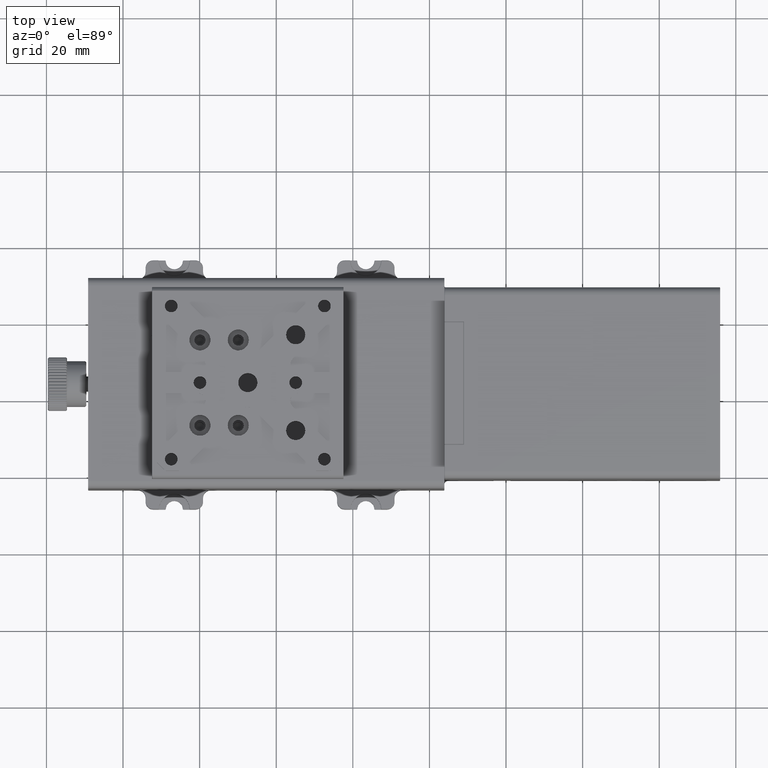
[diagram: clean part render]
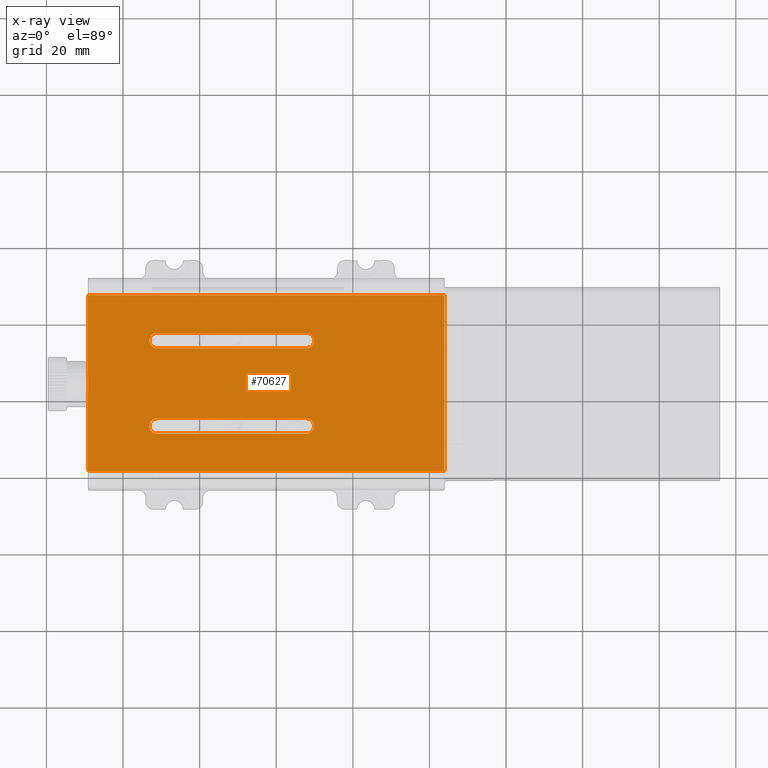
[diagram: x-ray — body ghosted, one internal face saturated and labeled with its STEP entity id]
A machine part, top view, then the same camera in x-ray: the body is ghosted and one INTERNAL B-rep face — a face not visible from any outside direction — is saturated and labeled: STEP entity #70627.
In plain terms, the highlighted planar face has unit normal (0, 0, 1).
Its self-contained STEP definition (entity closure, byte-faithful):
#964 = CIRCLE ( 'NONE', #76162, 2.000000000000001776 ) ;
#1258 = VERTEX_POINT ( 'NONE', #36710 ) ;
#2475 = CARTESIAN_POINT ( 'NONE',  ( -32.11011235955055554, 37.40842696629215425, 24.00000000000000000 ) ) ;
#2854 = CARTESIAN_POINT ( 'NONE',  ( -73.11011235955059817, 13.10842696629214110, 24.00000000000000000 ) ) ;
#3046 = LINE ( 'NONE', #27903, #21977 ) ;
#3352 = CARTESIAN_POINT ( 'NONE',  ( 3.889887640449449790, 47.25842696629209172, 24.00000000000000000 ) ) ;
#4679 = DIRECTION ( 'NONE',  ( -1.000000000000000000, 0.000000000000000000, 0.000000000000000000 ) ) ;
#5115 = VERTEX_POINT ( 'NONE', #73606 ) ;
#5117 = CARTESIAN_POINT ( 'NONE',  ( -73.11011235955059817, 33.40842696629215425, 24.00000000000000000 ) ) ;
#6685 = DIRECTION ( 'NONE',  ( 1.000000000000000000, 0.000000000000000000, 0.000000000000000000 ) ) ;
#7183 = DIRECTION ( 'NONE',  ( 1.000000000000000000, 0.000000000000000000, 0.000000000000000000 ) ) ;
#7926 = ORIENTED_EDGE ( 'NONE', *, *, #66463, .F. ) ;
#8285 = CIRCLE ( 'NONE', #80778, 2.000000000000001776 ) ;
#8307 = VECTOR ( 'NONE', #24137, 1000.000000000000000 ) ;
#8535 = CARTESIAN_POINT ( 'NONE',  ( -89.11011235955059817, 1.258426966292136129, 24.00000000000000000 ) ) ;
#8551 = EDGE_CURVE ( 'NONE', #77479, #56829, #8285, .T. ) ;
#9337 = DIRECTION ( 'NONE',  ( 1.000000000000000000, 0.000000000000000000, 0.000000000000000000 ) ) ;
#10386 = EDGE_CURVE ( 'NONE', #46378, #82194, #19054, .T. ) ;
#10423 = EDGE_CURVE ( 'NONE', #5115, #34966, #19476, .T. ) ;
#10672 = LINE ( 'NONE', #11065, #51928 ) ;
#10695 = ORIENTED_EDGE ( 'NONE', *, *, #47168, .T. ) ;
#11065 = CARTESIAN_POINT ( 'NONE',  ( -73.11011235955059817, 11.10842696629211979, 24.00000000000000000 ) ) ;
#12065 = AXIS2_PLACEMENT_3D ( 'NONE', #15161, #34079, #7183 ) ;
#12332 = CARTESIAN_POINT ( 'NONE',  ( 3.889887640449449790, 47.25842696629209172, 24.00000000000000000 ) ) ;
#12979 = CIRCLE ( 'NONE', #50602, 2.000000000000001776 ) ;
#13003 = DIRECTION ( 'NONE',  ( 0.000000000000000000, 0.000000000000000000, 1.000000000000000000 ) ) ;
#13099 = VECTOR ( 'NONE', #23998, 1000.000000000000000 ) ;
#13121 = VECTOR ( 'NONE', #4679, 1000.000000000000000 ) ;
#13423 = VERTEX_POINT ( 'NONE', #25596 ) ;
#15161 = CARTESIAN_POINT ( 'NONE',  ( -32.11011235955055554, 13.10842696629214110, 24.00000000000000000 ) ) ;
#15519 = ORIENTED_EDGE ( 'NONE', *, *, #64525, .F. ) ;
#15614 = DIRECTION ( 'NONE',  ( 0.000000000000000000, 0.000000000000000000, 1.000000000000000000 ) ) ;
#16401 = CARTESIAN_POINT ( 'NONE',  ( -32.11011235955055554, 11.10842696629211979, 24.00000000000000000 ) ) ;
#16787 = EDGE_LOOP ( 'NONE', ( #77813, #47249, #22033, #66593, #23701, #76634 ) ) ;
#17058 = CARTESIAN_POINT ( 'NONE',  ( -71.11011235955059817, 13.10842696629214110, 24.00000000000000000 ) ) ;
#17206 = CARTESIAN_POINT ( 'NONE',  ( -71.11011235955059817, 35.40842696629214714, 24.00000000000000000 ) ) ;
#18586 = VERTEX_POINT ( 'NONE', #81297 ) ;
#18638 = EDGE_CURVE ( 'NONE', #40859, #56829, #10672, .T. ) ;
#18679 = DIRECTION ( 'NONE',  ( 1.000000000000000000, 0.000000000000000000, 0.000000000000000000 ) ) ;
#19014 = LINE ( 'NONE', #32860, #34899 ) ;
#19054 = LINE ( 'NONE', #82121, #8307 ) ;
#19258 = ORIENTED_EDGE ( 'NONE', *, *, #10386, .F. ) ;
#19476 = LINE ( 'NONE', #75811, #71431 ) ;
#20287 = DIRECTION ( 'NONE',  ( 0.000000000000000000, 0.000000000000000000, 1.000000000000000000 ) ) ;
#21977 = VECTOR ( 'NONE', #65740, 1000.000000000000000 ) ;
#22033 = ORIENTED_EDGE ( 'NONE', *, *, #18638, .F. ) ;
#23701 = ORIENTED_EDGE ( 'NONE', *, *, #27343, .T. ) ;
#23998 = DIRECTION ( 'NONE',  ( 1.000000000000000000, 0.000000000000000000, 0.000000000000000000 ) ) ;
#24137 = DIRECTION ( 'NONE',  ( 0.000000000000000000, 1.000000000000000000, 0.000000000000000000 ) ) ;
#25388 = DIRECTION ( 'NONE',  ( 1.224646799147351975E-16, -1.000000000000000000, 0.000000000000000000 ) ) ;
#25397 = LINE ( 'NONE', #12332, #51437 ) ;
#25596 = CARTESIAN_POINT ( 'NONE',  ( -71.11011235955059817, 33.40842696629215425, 24.00000000000000000 ) ) ;
#26645 = CARTESIAN_POINT ( 'NONE',  ( -89.11011235955059817, 49.25842696629209883, 24.00000000000000000 ) ) ;
#27343 = EDGE_CURVE ( 'NONE', #18586, #42772, #44919, .T. ) ;
#27424 = CARTESIAN_POINT ( 'NONE',  ( -32.11011235955055554, 35.40842696629214714, 24.00000000000000000 ) ) ;
#27903 = CARTESIAN_POINT ( 'NONE',  ( -73.11011235955059817, 15.10842696629215176, 24.00000000000000000 ) ) ;
#30471 = ORIENTED_EDGE ( 'NONE', *, *, #55721, .T. ) ;
#32536 = CIRCLE ( 'NONE', #59366, 2.000000000000001776 ) ;
#32860 = CARTESIAN_POINT ( 'NONE',  ( -73.11011235955059817, 37.40842696629215425, 24.00000000000000000 ) ) ;
#32927 = FACE_OUTER_BOUND ( 'NONE', #66446, .T. ) ;
#33535 = CARTESIAN_POINT ( 'NONE',  ( 3.889887640449449790, 1.258426966292136129, 24.00000000000000000 ) ) ;
#33695 = DIRECTION ( 'NONE',  ( 1.000000000000000000, 0.000000000000000000, 0.000000000000000000 ) ) ;
#33802 = DIRECTION ( 'NONE',  ( 0.000000000000000000, 0.000000000000000000, 1.000000000000000000 ) ) ;
#34079 = DIRECTION ( 'NONE',  ( 0.000000000000000000, 0.000000000000000000, 1.000000000000000000 ) ) ;
#34217 = CARTESIAN_POINT ( 'NONE',  ( -71.11011235955059817, 13.10842696629214110, 24.00000000000000000 ) ) ;
#34899 = VECTOR ( 'NONE', #57273, 1000.000000000000000 ) ;
#34966 = VERTEX_POINT ( 'NONE', #8535 ) ;
#35700 = DIRECTION ( 'NONE',  ( 0.000000000000000000, 0.000000000000000000, 1.000000000000000000 ) ) ;
#36710 = CARTESIAN_POINT ( 'NONE',  ( -30.11011235955054843, 35.40842696629214714, 24.00000000000000000 ) ) ;
#37054 = CARTESIAN_POINT ( 'NONE',  ( -71.11011235955059817, 11.10842696629211979, 24.00000000000000000 ) ) ;
#39128 = EDGE_CURVE ( 'NONE', #64968, #1258, #42414, .T. ) ;
#40731 = DIRECTION ( 'NONE',  ( 0.000000000000000000, 0.000000000000000000, 1.000000000000000000 ) ) ;
#40859 = VERTEX_POINT ( 'NONE', #16401 ) ;
#41198 = DIRECTION ( 'NONE',  ( 1.000000000000000000, 0.000000000000000000, 0.000000000000000000 ) ) ;
#42414 = CIRCLE ( 'NONE', #47828, 2.000000000000001776 ) ;
#42772 = VERTEX_POINT ( 'NONE', #52224 ) ;
#44919 = CIRCLE ( 'NONE', #74492, 2.000000000000001776 ) ;
#45558 = FACE_BOUND ( 'NONE', #56708, .T. ) ;
#46378 = VERTEX_POINT ( 'NONE', #33535 ) ;
#46701 = CARTESIAN_POINT ( 'NONE',  ( -32.11011235955055554, 35.40842696629214714, 24.00000000000000000 ) ) ;
#47168 = EDGE_CURVE ( 'NONE', #70907, #64828, #964, .T. ) ;
#47249 = ORIENTED_EDGE ( 'NONE', *, *, #8551, .T. ) ;
#47828 = AXIS2_PLACEMENT_3D ( 'NONE', #46701, #51028, #18679 ) ;
#48275 = CARTESIAN_POINT ( 'NONE',  ( -71.11011235955059817, 15.10842696629215176, 24.00000000000000000 ) ) ;
#48315 = CIRCLE ( 'NONE', #12065, 2.000000000000001776 ) ;
#50022 = LINE ( 'NONE', #55942, #13099 ) ;
#50602 = AXIS2_PLACEMENT_3D ( 'NONE', #17058, #40731, #52516 ) ;
#51028 = DIRECTION ( 'NONE',  ( 0.000000000000000000, 0.000000000000000000, 1.000000000000000000 ) ) ;
#51370 = AXIS2_PLACEMENT_3D ( 'NONE', #26645, #52277, #77912 ) ;
#51437 = VECTOR ( 'NONE', #63612, 1000.000000000000000 ) ;
#51928 = VECTOR ( 'NONE', #81722, 1000.000000000000000 ) ;
#52224 = CARTESIAN_POINT ( 'NONE',  ( -32.11011235955055554, 15.10842696629215176, 24.00000000000000000 ) ) ;
#52277 = DIRECTION ( 'NONE',  ( 0.000000000000000000, 0.000000000000000000, 1.000000000000000000 ) ) ;
#52326 = DIRECTION ( 'NONE',  ( 1.000000000000000000, 0.000000000000000000, 0.000000000000000000 ) ) ;
#52516 = DIRECTION ( 'NONE',  ( 1.000000000000000000, 0.000000000000000000, 0.000000000000000000 ) ) ;
#52798 = CIRCLE ( 'NONE', #72917, 2.000000000000001776 ) ;
#55721 = EDGE_CURVE ( 'NONE', #1258, #78638, #32536, .T. ) ;
#55942 = CARTESIAN_POINT ( 'NONE',  ( 3.889887640449449790, 1.258426966292136129, 24.00000000000000000 ) ) ;
#56591 = EDGE_CURVE ( 'NONE', #82194, #5115, #25397, .T. ) ;
#56601 = CARTESIAN_POINT ( 'NONE',  ( -32.11011235955055554, 33.40842696629215425, 24.00000000000000000 ) ) ;
#56708 = EDGE_LOOP ( 'NONE', ( #7926, #10695, #67365, #15519, #64550, #30471 ) ) ;
#56829 = VERTEX_POINT ( 'NONE', #37054 ) ;
#57273 = DIRECTION ( 'NONE',  ( 1.000000000000000000, 0.000000000000000000, 0.000000000000000000 ) ) ;
#58382 = VERTEX_POINT ( 'NONE', #48275 ) ;
#58580 = FACE_BOUND ( 'NONE', #16787, .T. ) ;
#59366 = AXIS2_PLACEMENT_3D ( 'NONE', #27424, #20287, #9337 ) ;
#61218 = EDGE_CURVE ( 'NONE', #58382, #77479, #12979, .T. ) ;
#63612 = DIRECTION ( 'NONE',  ( -1.000000000000000000, 0.000000000000000000, 0.000000000000000000 ) ) ;
#64525 = EDGE_CURVE ( 'NONE', #64968, #13423, #74910, .T. ) ;
#64550 = ORIENTED_EDGE ( 'NONE', *, *, #39128, .T. ) ;
#64828 = VERTEX_POINT ( 'NONE', #73490 ) ;
#64968 = VERTEX_POINT ( 'NONE', #56601 ) ;
#65740 = DIRECTION ( 'NONE',  ( 1.000000000000000000, 0.000000000000000000, 0.000000000000000000 ) ) ;
#66446 = EDGE_LOOP ( 'NONE', ( #73118, #82890, #76723, #19258 ) ) ;
#66463 = EDGE_CURVE ( 'NONE', #70907, #78638, #19014, .T. ) ;
#66593 = ORIENTED_EDGE ( 'NONE', *, *, #83227, .T. ) ;
#67365 = ORIENTED_EDGE ( 'NONE', *, *, #72628, .T. ) ;
#67440 = CARTESIAN_POINT ( 'NONE',  ( -32.11011235955055554, 13.10842696629214110, 24.00000000000000000 ) ) ;
#70590 = CARTESIAN_POINT ( 'NONE',  ( -71.11011235955059817, 35.40842696629214714, 24.00000000000000000 ) ) ;
#70627 = ADVANCED_FACE ( 'NONE', ( #58580, #45558, #32927 ), #71188, .F. ) ;
#70907 = VERTEX_POINT ( 'NONE', #82454 ) ;
#71188 = PLANE ( 'NONE',  #51370 ) ;
#71431 = VECTOR ( 'NONE', #25388, 1000.000000000000000 ) ;
#71895 = EDGE_CURVE ( 'NONE', #58382, #42772, #3046, .T. ) ;
#72628 = EDGE_CURVE ( 'NONE', #64828, #13423, #52798, .T. ) ;
#72917 = AXIS2_PLACEMENT_3D ( 'NONE', #70590, #13003, #6685 ) ;
#73118 = ORIENTED_EDGE ( 'NONE', *, *, #79631, .F. ) ;
#73490 = CARTESIAN_POINT ( 'NONE',  ( -73.11011235955059817, 35.40842696629214714, 24.00000000000000000 ) ) ;
#73606 = CARTESIAN_POINT ( 'NONE',  ( -89.11011235955059817, 47.25842696629209172, 24.00000000000000000 ) ) ;
#74492 = AXIS2_PLACEMENT_3D ( 'NONE', #67440, #15614, #33695 ) ;
#74910 = LINE ( 'NONE', #5117, #13121 ) ;
#75811 = CARTESIAN_POINT ( 'NONE',  ( -89.11011235955059817, 49.25842696629209883, 24.00000000000000000 ) ) ;
#76162 = AXIS2_PLACEMENT_3D ( 'NONE', #17206, #35700, #41198 ) ;
#76634 = ORIENTED_EDGE ( 'NONE', *, *, #71895, .F. ) ;
#76723 = ORIENTED_EDGE ( 'NONE', *, *, #56591, .F. ) ;
#77479 = VERTEX_POINT ( 'NONE', #2854 ) ;
#77813 = ORIENTED_EDGE ( 'NONE', *, *, #61218, .T. ) ;
#77912 = DIRECTION ( 'NONE',  ( 1.000000000000000000, 0.000000000000000000, 0.000000000000000000 ) ) ;
#78638 = VERTEX_POINT ( 'NONE', #2475 ) ;
#79631 = EDGE_CURVE ( 'NONE', #34966, #46378, #50022, .T. ) ;
#80778 = AXIS2_PLACEMENT_3D ( 'NONE', #34217, #33802, #52326 ) ;
#81297 = CARTESIAN_POINT ( 'NONE',  ( -30.11011235955054843, 13.10842696629214110, 24.00000000000000000 ) ) ;
#81722 = DIRECTION ( 'NONE',  ( -1.000000000000000000, 0.000000000000000000, 0.000000000000000000 ) ) ;
#82121 = CARTESIAN_POINT ( 'NONE',  ( 3.889887640449449790, 49.25842696629209883, 24.00000000000000000 ) ) ;
#82194 = VERTEX_POINT ( 'NONE', #3352 ) ;
#82454 = CARTESIAN_POINT ( 'NONE',  ( -71.11011235955059817, 37.40842696629215425, 24.00000000000000000 ) ) ;
#82890 = ORIENTED_EDGE ( 'NONE', *, *, #10423, .F. ) ;
#83227 = EDGE_CURVE ( 'NONE', #40859, #18586, #48315, .T. ) ;